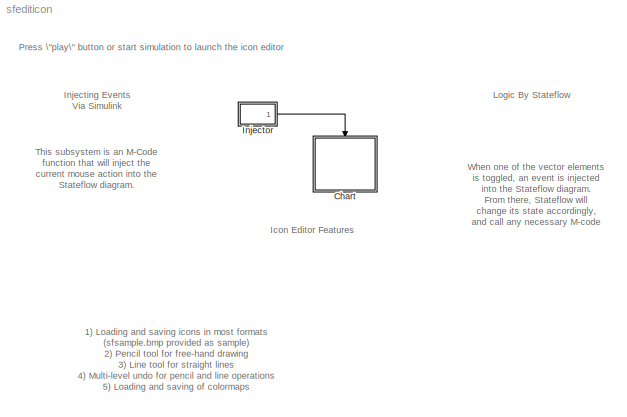
MODEL sfediticon
KIND model
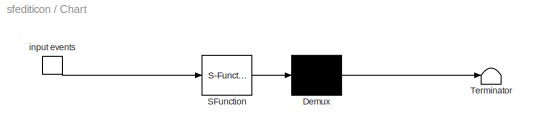
BLOCK [SubSystem] Chart
  MaskDescription = Stateflow diagram
  MaskDisplay = plot(sf('Private','sfblk','xIcon'),sf('Private','sfblk','yIcon'));text(0.5,0,sf('Private', 'sfblk', 'tIcon'),'HorizontalAl','Center','VerticalAl','Bottom');
  MaskIconFrame = off
  MaskIconOpaque = off
  MaskIconRotate = none
  MaskIconUnits = autoscale
  MaskSelfModifiable = on
  MaskType = Stateflow
  MinAlgLoopOccurrences = off
  Ports = [0, 0, 0, 1]
  PropExecContextAcrossSSBoundary = on
  RTWSystemCode = Auto
  TreatAsAtomicUnit = off
BLOCK [Demux] Chart/ Demux 
  Outputs = 1
  Ports = [1, 1]
BLOCK [S-Function] Chart/ SFunction 
  FunctionName = sf_sfun
  PortCounts = [1 1]
  Ports = [1, 1]
  Tag = Stateflow S-Function sfediticon 1
BLOCK [Terminator] Chart/ Terminator 
BLOCK [TriggerPort] Chart/ input events 
  Ports = [0, 1]
  ShowOutputPort = on
  TriggerType = either
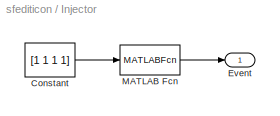
BLOCK [SubSystem] Injector
  MinAlgLoopOccurrences = off
  Ports = [0, 1]
  PropExecContextAcrossSSBoundary = on
  RTWSystemCode = Auto
  TreatAsAtomicUnit = off
BLOCK [Constant] Injector/Constant
  Value = [1 1 1 1]
BLOCK [Outport] Injector/Event
  IconDisplay = Port number
BLOCK [MATLABFcn] Injector/MATLAB Fcn
  MATLABFcn = sf_inject_event
ANNOTATION (root): 1) Loading and saving icons in most formats\n (sfsample.bmp provided as sample)\n2) Pencil tool for free-hand drawing\n3) Line tool for straight lines\n4) Multi-level undo for pencil and line operations\n5) Loading and saving of colormaps\n (gray.cmp provided as sample)\n6) Adding and deleting colors from the current \n colormap\n7) Changing colors in the colormap \n (this is immediately reflected...<+13ch>
ANNOTATION (root): Icon Editor Features
ANNOTATION (root): Injecting Events\nVia Simulink
ANNOTATION (root): Logic By Stateflow
ANNOTATION (root): Press \"play\" button or start simulation to launch the icon editor
ANNOTATION (root): This subsystem is an M-Code\nfunction that will inject the \ncurrent mouse action into the \nStateflow diagram.
ANNOTATION (root): When one of the vector elements\nis toggled, an event is injected\ninto the Stateflow diagram.\nFrom there, Stateflow will \nchange its state accordingly, \nand call any necessary M-code\nhelper functions.
LINE Chart/ Demux :1 -> Chart/ Terminator :1
LINE Chart/ SFunction :1 -> Chart/ Demux :1
LINE Chart/ input events :1 -> Chart/ SFunction :1
LINE Injector/Constant:1 -> Injector/MATLAB Fcn:1
LINE Injector/MATLAB Fcn:1 -> Injector/Event:1
LINE Injector:1 -> Chart:trigger
CHART Chart states=22 transitions=67
  STATE_LABEL 'Released'
  STATE_LABEL "Locked\\nen:\\nml.sf_edit_icon...\\n('status', 'Tool locked');"
  STATE_LABEL 'Pressed\\nen:\\npressedIcon = focusedIcon;\\npress(pressedIcon,1);\\nex: press(pressedIcon,0);'
  STATE_LABEL 'icon_operation(icon)'
  STATE_LABEL 'ToolBar'
  STATE_LABEL "None\\npressedIcon = 0;\\nml.sf_edit_icon('status', 'Select a tool');\\nml.sf_edit_icon('normal_cursor');"
  STATE_LABEL 'Focus'
  STATE_LABEL 'Palette'
  STATE_LABEL 'None'
  STATE_LABEL 'Swatch'
  STATE_LABEL 'Icon'
  STATE_LABEL 'Canvas'
  STATE_LABEL 'None'
  STATE_LABEL 'Toolbar\\nen: set_focusedIcon();\\ndu: set_focusedIcon();\\nex: focusedIcon = 0;'
  STATE_LABEL 'set_focusedIcon()'
  STATE_LABEL 'press(icon,sp)'
  STATE_LABEL 'Main'
  STATE_LABEL "FGColorSelect\\nen: ml.sf_edit_icon('cache_color');\\nex: ml.sf_edit_icon('fgcolor');"
  STATE_LABEL "PencilDraw\\nen: ml.sf_edit_icon('draw_point');\\ndu: ml.sf_edit_icon('draw_point');\\nex:  ml.sf_edit_icon('commit');"
  STATE_LABEL 'Idle'
  STATE_LABEL "LineDraw\\nen: ml.sf_edit_icon('anchor_line');\\ndu: ml.sf_edit_icon('render_line');\\nex:  ml.sf_edit_icon('commit');"
  STATE_LABEL 'Note:\\nMake sure \\"Focus\\" comes before \\"Tool\\".\\nThe Tool state depends on up-to-date\\ninformation about the Focus.'
